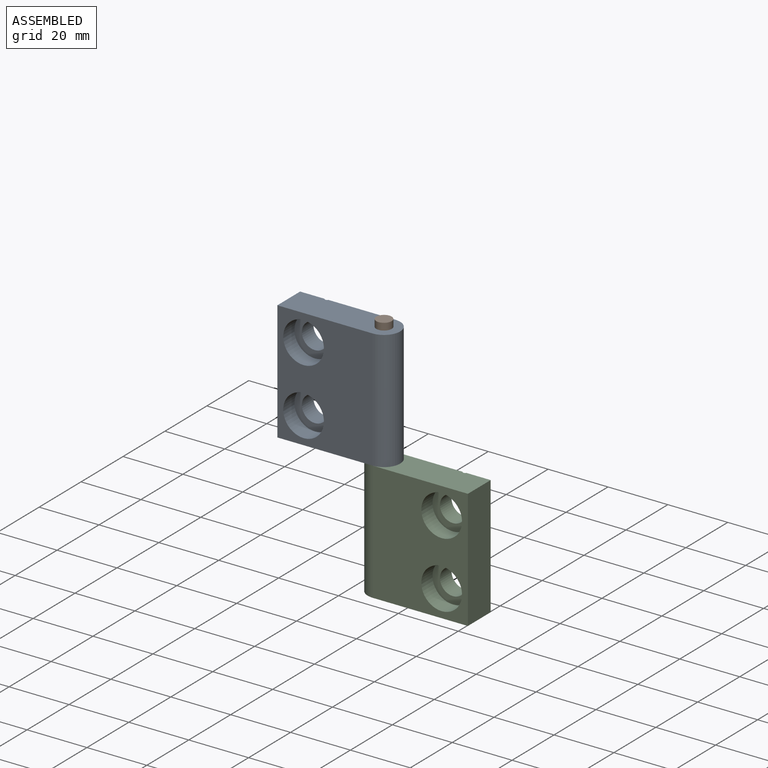
[diagram: assembled view]
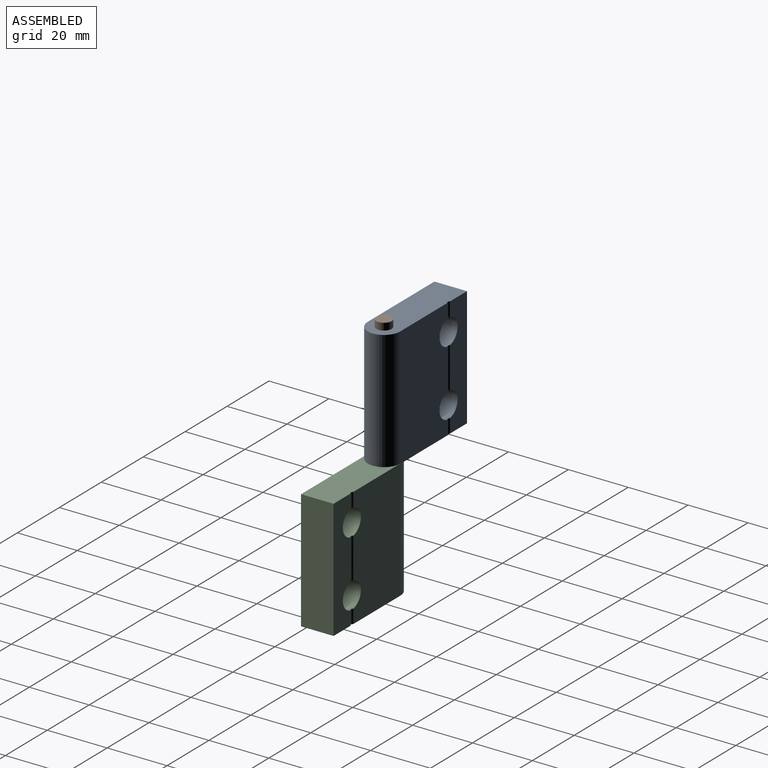
[diagram: assembled view, second angle]
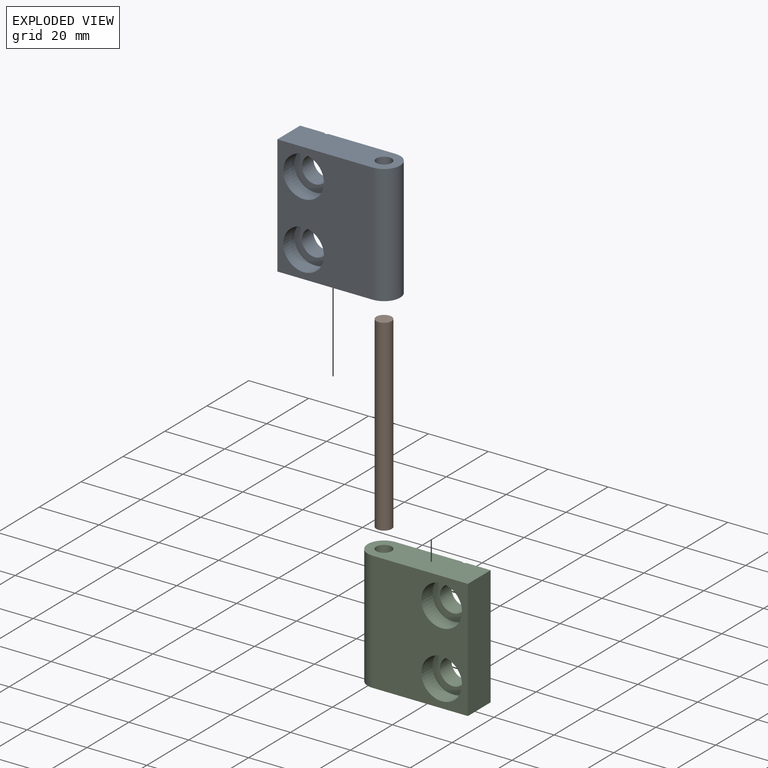
[diagram: exploded view]
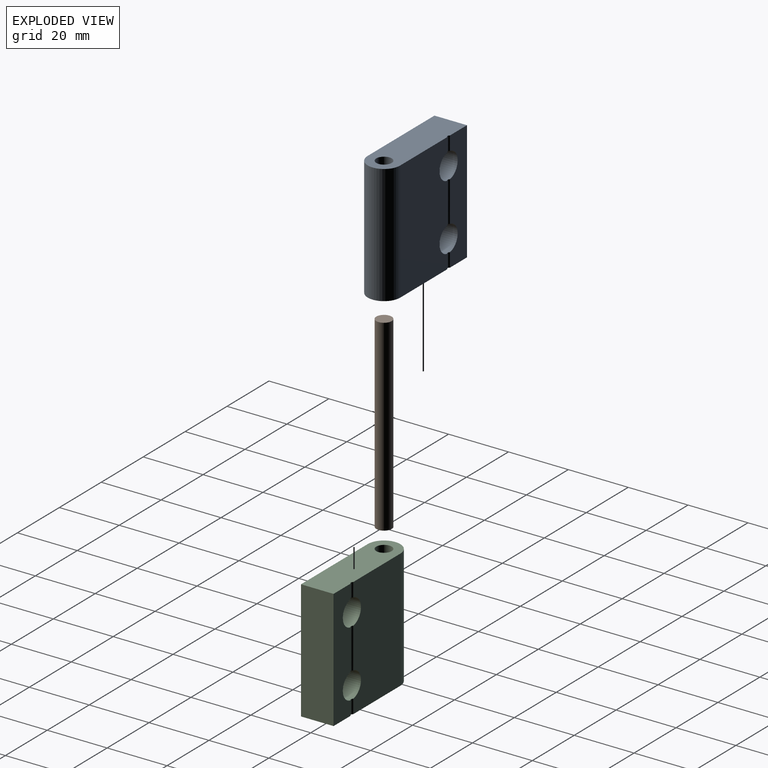
[diagram: exploded view, second angle]
ASSEMBLY  parts=3 mates=2
PART A: 17 faces, bbox 37.3x10.9x39.9 mm
  f0: cylinder r=4.31mm len=8.62mm, axis (0,-1,0), area 148.6mm2, adj f3,f7,f8,f9,f16
  f1: cylinder r=4.31mm len=8.62mm, axis (0,-1,0), area 148.6mm2, adj f2,f3,f7,f9,f14
  f2: cylinder r=0.77mm len=4.67mm, axis (0,0,-1), area 7.2mm2, adj f1,f7,f9,f11
  f3: cylinder r=0.77mm len=13.52mm, axis (0,0,-1), area 20.9mm2, adj f0,f1,f7,f9
  f4: plane 39.9x10.86mm, normal (-1,0,0), area 433.3mm2, adj f5,f9,f11,f12
  f5: plane 39.9x31.82mm, normal (0,1,0), area 979.1mm2, adj f4,f6,f11,f12,f13,f15
  f6: cylinder r=5.43mm len=39.9mm, axis (0,0,-1), area 680.6mm2, adj f5,f7,f11,f12
  f7: plane 39.9x22.41mm, normal (0,-1,0), area 847mm2, adj f0,f1,f2,f3,f6,f8,f11,f12
  f8: cylinder r=0.77mm len=4.67mm, axis (0,0,-1), area 7.2mm2, adj f0,f7,f9,f12
  f9: plane 39.9x8.11mm, normal (0,-1,0), area 276.4mm2, adj f0,f1,f2,f3,f4,f8,f11,f12
  f10: cylinder r=2.58mm len=39.9mm, axis (0,0,-1), area 645.6mm2, adj f11,f12
  f11: plane 37.25x10.86mm, normal (0,0,1), area 370.7mm2, adj f2,f4,f5,f6,f7,f9,f10
  f12: plane 37.25x10.86mm, normal (0,0,-1), area 370.7mm2, adj f4,f5,f6,f7,f8,f9,f10
  f13: cylinder r=6.8mm len=13.6mm, axis (0,1,0), area 228.6mm2, adj f5,f14
  f14: plane 13.6x13.6mm, normal (0,1,0), area 86.9mm2, adj f1,f13
  f15: cylinder r=6.8mm len=13.6mm, axis (0,1,0), area 228.6mm2, adj f5,f16
  f16: plane 13.6x13.6mm, normal (0,1,0), area 86.9mm2, adj f0,f15
PART B: 3 faces, bbox 5.2x5.2x62.7 mm
  f0: cylinder r=2.58mm len=62.74mm, axis (0,0,-1), area 1015.1mm2, adj f1,f2
  f1: plane 5.15x5.15mm, normal (0,0,1), area 20.8mm2, adj f0
  f2: plane 5.15x5.15mm, normal (0,0,-1), area 20.8mm2, adj f0
PART C: 20 faces, bbox 37.3x10.9x39.9 mm
  f0: cylinder r=2.58mm len=9.95mm, axis (0,0,-1), area 161mm2, adj f13,f19
  f1: cylinder r=4.31mm len=8.62mm, axis (0,-1,0), area 148.6mm2, adj f4,f8,f9,f10,f17
  f2: cylinder r=4.31mm len=8.62mm, axis (0,-1,0), area 148.6mm2, adj f3,f4,f8,f10,f15
  f3: cylinder r=0.77mm len=4.67mm, axis (0,0,-1), area 7.2mm2, adj f2,f8,f10,f12
  f4: cylinder r=0.77mm len=13.52mm, axis (0,0,-1), area 20.9mm2, adj f1,f2,f8,f10
  f5: plane 39.9x10.86mm, normal (-1,0,0), area 433.3mm2, adj f6,f10,f12,f13
  f6: plane 39.9x31.82mm, normal (0,1,0), area 979.1mm2, adj f5,f7,f12,f13,f14,f16
  f7: cylinder r=5.43mm len=39.9mm, axis (0,0,-1), area 680.6mm2, adj f6,f8,f12,f13
  f8: plane 39.9x22.41mm, normal (0,-1,0), area 847mm2, adj f1,f2,f3,f4,f7,f9,f12,f13
  f9: cylinder r=0.77mm len=4.67mm, axis (0,0,-1), area 7.2mm2, adj f1,f8,f10,f13
  f10: plane 39.9x8.11mm, normal (0,-1,0), area 276.4mm2, adj f1,f2,f3,f4,f5,f9,f12,f13
  f11: cylinder r=2.58mm len=20.5mm, axis (0,0,-1), area 331.7mm2, adj f12,f18
  f12: plane 37.25x10.86mm, normal (0,0,1), area 370.7mm2, adj f3,f5,f6,f7,f8,f10,f11
  f13: plane 37.25x10.86mm, normal (0,0,-1), area 370.7mm2, adj f0,f5,f6,f7,f8,f9,f10
  f14: cylinder r=6.8mm len=13.6mm, axis (0,1,0), area 228.6mm2, adj f6,f15
  f15: plane 13.6x13.6mm, normal (0,1,0), area 86.9mm2, adj f2,f14
  f16: cylinder r=6.8mm len=13.6mm, axis (0,1,0), area 228.6mm2, adj f6,f17
  f17: plane 13.6x13.6mm, normal (0,1,0), area 86.9mm2, adj f1,f16
  f18: plane 5.15x5.15mm, normal (0,0,1), area 20.8mm2, adj f11
  f19: plane 5.15x5.15mm, normal (0,0,-1), area 20.8mm2, adj f0
PLACE A rot(axis=(1,0,0),180deg) t=(-36.18,-0.85,119.53)mm
PLACE B rot(axis=(0,0,-1),0deg) t=(-36.18,-0.85,-0.17)mm
PLACE C rot(axis=(0,0,1),180deg) t=(27.46,-0.85,-0.17)mm fixed
MATE fastened B.f0 <-> C.f0  axis (0,0,-1) through (-36.18,-0.85,19.23)mm
MATE revolute C.f0 <-> A.f10  axis (0,0,1) through (-36.18,-0.85,39.73)mm
